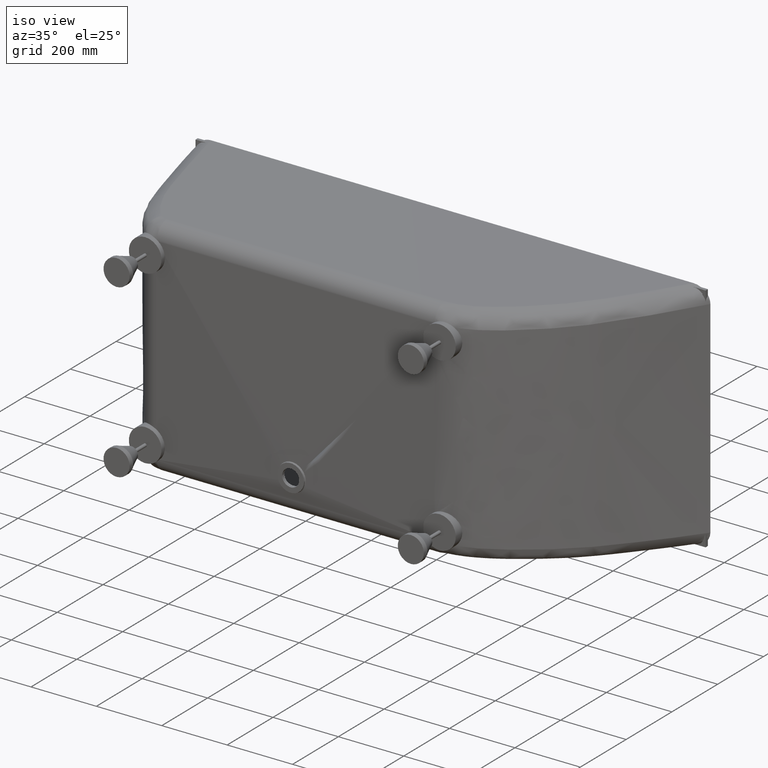
[diagram: clean part render]
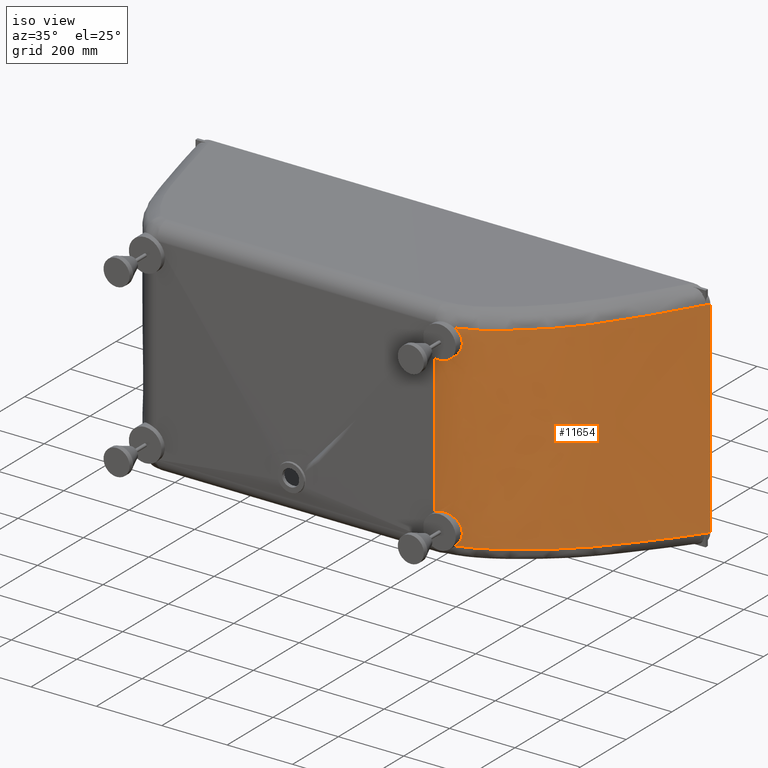
[diagram: same view with one face highlighted and labeled with its STEP entity id]
A machine part, iso view. The second image highlights one B-rep face of the part: STEP entity #11654.
In plain terms, the highlighted face is a freeform B-spline surface patch.
Its self-contained STEP definition (entity closure, byte-faithful):
#9 = CARTESIAN_POINT ( 'NONE',  ( 1267.309593137725000, -357.3975024837407100, 649.2378094680402700 ) ) ;
#53 = CARTESIAN_POINT ( 'NONE',  ( 1269.983699795123800, -355.2120164213674200, 649.3076579596275900 ) ) ;
#94 = CARTESIAN_POINT ( 'NONE',  ( 1283.295496177702300, -344.2252714233738400, 649.6583962051190600 ) ) ;
#188 = CARTESIAN_POINT ( 'NONE',  ( 1293.757025290532100, -335.2461190534969500, 649.9437730083410500 ) ) ;
#233 = CARTESIAN_POINT ( 'NONE',  ( 1314.229546654050200, -316.8328524161873900, 650.5262151124893500 ) ) ;
#376 = CARTESIAN_POINT ( 'NONE',  ( 1324.240568289934300, -307.3987677605180700, 650.8232776860498900 ) ) ;
#422 = CARTESIAN_POINT ( 'NONE',  ( 1338.861870904936900, -292.8485333604758700, 651.2792597529942200 ) ) ;
#467 = CARTESIAN_POINT ( 'NONE',  ( 1343.669750238144600, -287.9319206033292700, 651.4329857938461100 ) ) ;
#518 = CARTESIAN_POINT ( 'NONE',  ( 1353.143931049073700, -277.9557290417711200, 651.7441850910419100 ) ) ;
#531 = CARTESIAN_POINT ( 'NONE',  ( 1095.800427694182900, -457.5483243513754700, 646.1879837396973000 ) ) ;
#565 = CARTESIAN_POINT ( 'NONE',  ( 1357.808626056019900, -272.8945399746083900, 651.9020796299494100 ) ) ;
#611 = CARTESIAN_POINT ( 'NONE',  ( 1371.606892251708600, -257.5133530881425900, 652.3847202786641900 ) ) ;
#654 = CARTESIAN_POINT ( 'NONE',  ( 1380.545864728367600, -246.9969355428487700, 652.7173739683978500 ) ) ;
#711 = CARTESIAN_POINT ( 'NONE',  ( 1062.869857158067600, -463.7492976459578200, 556.7684142275520600 ) ) ;
#738 = CARTESIAN_POINT ( 'NONE',  ( 1065.041729095620700, -463.4875641337829400, 556.7684142275519400 ) ) ;
#739 = CARTESIAN_POINT ( 'NONE',  ( 1393.666486856835300, -230.9318373905376200, 653.2298961310876800 ) ) ;
#757 = CARTESIAN_POINT ( 'NONE',  ( 1060.718462995277400, -463.9747971106363000, 556.9093165557538900 ) ) ;
#758 = CARTESIAN_POINT ( 'NONE',  ( 1397.989606004839100, -225.5314365937515800, 653.4028940617571400 ) ) ;
#773 = CARTESIAN_POINT ( 'NONE',  ( 1056.455482163254800, -464.3568567958956200, 557.4642905254038400 ) ) ;
#783 = CARTESIAN_POINT ( 'NONE',  ( 1406.544078837321200, -214.6691486668219400, 653.7523080740330700 ) ) ;
#787 = CARTESIAN_POINT ( 'NONE',  ( 1054.343897854211500, -464.5134058493065400, 557.8783818421636600 ) ) ;
#805 = CARTESIAN_POINT ( 'NONE',  ( 1410.777130200064900, -209.2051886400693900, 653.9287900949783500 ) ) ;
#819 = CARTESIAN_POINT ( 'NONE',  ( 1051.207227630314900, -464.6990214638698800, 558.7082822657588400 ) ) ;
#831 = CARTESIAN_POINT ( 'NONE',  ( 1423.374271940441300, -192.7375619096949900, 654.4628689024178800 ) ) ;
#852 = CARTESIAN_POINT ( 'NONE',  ( 1050.166805955104600, -464.7526916419151900, 559.0198141798074400 ) ) ;
#853 = CARTESIAN_POINT ( 'NONE',  ( 1431.636366728770300, -181.6581611514112100, 654.8251023073638600 ) ) ;
#868 = CARTESIAN_POINT ( 'NONE',  ( 1048.096599779118200, -464.8440561670190600, 559.7146711521840000 ) ) ;
#882 = CARTESIAN_POINT ( 'NONE',  ( 1443.946831817297800, -164.9777576740013100, 655.3748756164723100 ) ) ;
#888 = CARTESIAN_POINT ( 'NONE',  ( 1047.071049645312500, -464.8815285303695600, 560.0967626611105700 ) ) ;
#900 = CARTESIAN_POINT ( 'NONE',  ( 1448.036533068142500, -159.4074005927162400, 655.5592075713510700 ) ) ;
#916 = CARTESIAN_POINT ( 'NONE',  ( 1044.045429607903500, -464.9702335912373300, 561.3381497862984600 ) ) ;
#949 = CARTESIAN_POINT ( 'NONE',  ( 1042.086965963234200, -464.9981872651615000, 562.2951761525662300 ) ) ;
#950 = CARTESIAN_POINT ( 'NONE',  ( 1456.208581992661500, -148.2612687995967100, 655.9295052845886900 ) ) ;
#983 = CARTESIAN_POINT ( 'NONE',  ( 1040.187886549534400, -464.9999145539902700, 563.3830882440562400 ) ) ;
#997 = CARTESIAN_POINT ( 'NONE',  ( 1460.290916195710200, -142.6854478208637700, 656.1143645788459900 ) ) ;
#1035 = CARTESIAN_POINT ( 'NONE',  ( 1472.511129037617600, -125.9380371757541300, 656.6684600621106300 ) ) ;
#1080 = CARTESIAN_POINT ( 'NONE',  ( 1480.622260560560100, -114.7465316199494200, 657.0372164888639200 ) ) ;
#1172 = CARTESIAN_POINT ( 'NONE',  ( 1496.689005277050200, -92.24783583115703300, 657.7754259195961600 ) ) ;
#1226 = CARTESIAN_POINT ( 'NONE',  ( 1504.644775585312100, -80.94044559387660300, 658.1448844589785900 ) ) ;
#1273 = CARTESIAN_POINT ( 'NONE',  ( 1520.303181811759700, -58.16296286480203300, 658.8858578315096100 ) ) ;
#1423 = CARTESIAN_POINT ( 'NONE',  ( 1528.006992442407600, -46.69136967102464600, 659.2574216721820900 ) ) ;
#1428 = ORIENTED_EDGE ( 'NONE', *, *, #3175, .T. ) ;
#1478 = CARTESIAN_POINT ( 'NONE',  ( 1539.305206256567500, -29.31386054003811400, 659.8176765264269100 ) ) ;
#1520 = CARTESIAN_POINT ( 'NONE',  ( 1543.028327964336300, -23.49298276063200000, 660.0049129404645800 ) ) ;
#1568 = CARTESIAN_POINT ( 'NONE',  ( 1548.539551368239500, -14.71313710322973200, 660.2866579575286300 ) ) ;
#1614 = CARTESIAN_POINT ( 'NONE',  ( 1550.364379802462700, -11.77843184226755800, 660.3807213841103000 ) ) ;
#1642 = LINE ( 'NONE', #3047, #7200 ) ;
#1670 = CARTESIAN_POINT ( 'NONE',  ( 1553.082096264537800, -7.363474668440056300, 660.5220598249299000 ) ) ;
#1766 = CARTESIAN_POINT ( 'NONE',  ( 1553.985540200034600, -5.890279599285811700, 660.5717753942847100 ) ) ;
#1810 = CARTESIAN_POINT ( 'NONE',  ( 1555.794383598505200, -2.945139799642519500, 660.6699028551853400 ) ) ;
#1949 = CARTESIAN_POINT ( 'NONE',  ( 1556.698805297739900, -1.472569899821762900, 660.7189665856359400 ) ) ;
#2035 = ORIENTED_EDGE ( 'NONE', *, *, #10772, .T. ) ;
#2365 = CARTESIAN_POINT ( 'NONE',  ( 1557.603226996974600, 8.906065236621829800E-014, 660.7680303160860800 ) ) ;
#2414 = CARTESIAN_POINT ( 'NONE',  ( 1195.505133367474900, -410.8911458438734600, 647.5489029478402500 ) ) ;
#2669 = CARTESIAN_POINT ( 'NONE',  ( 1095.800427694182900, -457.5483243513754700, 646.1879837396973000 ) ) ;
#2931 = CARTESIAN_POINT ( 'NONE',  ( 1557.603226996974600, 4.672026463672500800E-014, 29.23196968391388900 ) ) ;
#2949 = CARTESIAN_POINT ( 'NONE',  ( 1556.701317016299500, -1.468480346076658200, 29.28089715681695200 ) ) ;
#2965 = CARTESIAN_POINT ( 'NONE',  ( 1555.799407035623300, -2.936960692153207700, 29.32982462971998700 ) ) ;
#2978 = CARTESIAN_POINT ( 'NONE',  ( 1553.995587074271700, -5.873921384306257200, 29.42767957552619200 ) ) ;
#2991 = CARTESIAN_POINT ( 'NONE',  ( 1553.094639102471800, -7.343015621141594500, 29.47728552427100000 ) ) ;
#3006 = CARTESIAN_POINT ( 'NONE',  ( 1550.384578329704300, -11.74578323757758700, 29.61823279432220000 ) ) ;
#3018 = CARTESIAN_POINT ( 'NONE',  ( 1548.564923736037600, -14.67240840182887500, 29.71203630172126600 ) ) ;
#3028 = CARTESIAN_POINT ( 'NONE',  ( 1543.069412932649400, -23.42814000303645000, 29.99300380360178100 ) ) ;
#3040 = CARTESIAN_POINT ( 'NONE',  ( 1539.357020947334400, -29.23310998000716800, 30.17972486336129000 ) ) ;
#3047 = CARTESIAN_POINT ( 'NONE',  ( 1557.603226996974600, 8.906065236621829800E-014, 660.7680303160860800 ) ) ;
#3050 = CARTESIAN_POINT ( 'NONE',  ( 1528.091612423114400, -46.56330276868231300, 30.73843992867504600 ) ) ;
#3078 = CARTESIAN_POINT ( 'NONE',  ( 1520.410492312701100, -58.00389371396797600, 31.10898561876357200 ) ) ;
#3109 = CARTESIAN_POINT ( 'NONE',  ( 1504.798356681897800, -80.71995988027639200, 31.84792510703810100 ) ) ;
#3133 = CARTESIAN_POINT ( 'NONE',  ( 1496.866172379019000, -91.99693032881033600, 32.21636772631658400 ) ) ;
#3169 = DIRECTION ( 'NONE',  ( -0.0000000000000000000, -0.0000000000000000000, -1.000000000000000000 ) ) ;
#3175 = EDGE_CURVE ( 'NONE', #3781, #5935, #8223, .T. ) ;
#3176 = CARTESIAN_POINT ( 'NONE',  ( 1480.846639454985300, -114.4350718417505100, 32.95253862744112200 ) ) ;
#3189 = CARTESIAN_POINT ( 'NONE',  ( 1472.759193661730300, -125.5963598550268800, 33.32026973420256900 ) ) ;
#3213 = CARTESIAN_POINT ( 'NONE',  ( 1460.574112955069300, -142.2981499385913900, 33.87280517536966300 ) ) ;
#3229 = CARTESIAN_POINT ( 'NONE',  ( 1456.503423355706700, -147.8587149991086300, 34.05714076722849600 ) ) ;
#3255 = B_SPLINE_CURVE_WITH_KNOTS ( 'NONE', 3,
 ( #4154, #4181, #4094, #4077, #4035, #4017, #4007, #3995, #3978, #3970, #3959, #3944, #3931, #3923, #3894, #3885, #3855, #3831, #3820, #3793, #3775, #3745, #3729, #3696, #3679, #3651, #3632, #3555, #3537, #3485, #3454, #3436, #3409, #3387, #3355, #3341, #3316, #3274, #3257, #3229, #3213, #3189, #3176, #3133, #3109, #3078, #3050, #3040, #3028, #3018, #3006, #2991, #2978, #2965, #2949, #2931 ),
 .UNSPECIFIED., .F., .F.,
 ( 4, 2, 2, 2, 2, 2, 2, 2, 2, 2, 2, 2, 2, 2, 2, 2, 2, 2, 2, 2, 2, 2, 2, 2, 2, 2, 2, 4 ),
 ( 2.795330740323173300, 2.815908880647884700, 2.826197950810239900, 2.836487020972595600, 2.857065161297307000, 2.877643301622018000, 2.918799582271440300, 2.959955862920862700, 2.980534003245574000, 2.990823073407929700, 3.001112143570285400, 3.042268424219708700, 3.083424704869132300, 3.104002845193843700, 3.124580985518555600, 3.165737266167979200, 3.186315406492691100, 3.206893546817402900, 3.248049827466827000, 3.268627967791538900, 3.289206108116250200, 3.330362388765673900, 3.371518669415097600, 3.412674950064521700, 3.433253090389233500, 3.443542160551589700, 3.448686695632767800, 3.453831230713945800 ),
 .UNSPECIFIED. ) ;
#3257 = CARTESIAN_POINT ( 'NONE',  ( 1448.354443802951200, -158.9741717135670200, 34.42638136507490300 ) ) ;
#3274 = CARTESIAN_POINT ( 'NONE',  ( 1444.276528947666300, -164.5293746324724100, 34.61030376097102100 ) ) ;
#3316 = CARTESIAN_POINT ( 'NONE',  ( 1432.002519240530100, -181.1651351689708100, 35.15872737324670500 ) ) ;
#3341 = CARTESIAN_POINT ( 'NONE',  ( 1423.766148078437700, -192.2158288396857700, 35.52011143268594400 ) ) ;
#3355 = CARTESIAN_POINT ( 'NONE',  ( 1411.210738421993700, -208.6427328740333800, 36.05301408858339600 ) ) ;
#3387 = CARTESIAN_POINT ( 'NONE',  ( 1406.992122489104500, -214.0935085441344900, 36.22912035798020700 ) ) ;
#3409 = CARTESIAN_POINT ( 'NONE',  ( 1398.467744242736200, -224.9303370424743200, 36.57781896170263300 ) ) ;
#3436 = CARTESIAN_POINT ( 'NONE',  ( 1394.160553190964900, -230.3181401316657000, 36.75046698904190400 ) ) ;
#3454 = CARTESIAN_POINT ( 'NONE',  ( 1381.087477296373700, -246.3498329716194900, 37.26208837734957800 ) ) ;
#3485 = CARTESIAN_POINT ( 'NONE',  ( 1372.182608061922600, -256.8464088505771200, 37.59423055535448600 ) ) ;
#3537 = CARTESIAN_POINT ( 'NONE',  ( 1358.439870436722500, -272.2022488090434000, 38.07625201736554700 ) ) ;
#3555 = CARTESIAN_POINT ( 'NONE',  ( 1353.794561363919000, -277.2558721357052600, 38.23401936493272800 ) ) ;
#3632 = CARTESIAN_POINT ( 'NONE',  ( 1344.360046405858200, -287.2178438062699700, 38.54470798572540200 ) ) ;
#3651 = CARTESIAN_POINT ( 'NONE',  ( 1339.572160219553300, -292.1275084293922600, 38.69818229508203400 ) ) ;
#3673 = CARTESIAN_POINT ( 'NONE',  ( 1040.000000000000000, -465.0000000000000600, 664.5572466798792000 ) ) ;
#3679 = CARTESIAN_POINT ( 'NONE',  ( 1325.011208931568900, -306.6572740157742500, 39.15341724621887200 ) ) ;
#3696 = CARTESIAN_POINT ( 'NONE',  ( 1315.040917382845500, -316.0782135996846000, 39.44999256160862400 ) ) ;
#3707 = CARTESIAN_POINT ( 'NONE',  ( 1048.292426831037800, -465.0000000000001100, 664.5572466798792000 ) ) ;
#3712 = CARTESIAN_POINT ( 'NONE',  ( 1048.292426831037800, -465.0000000000001100, 25.44275332012080400 ) ) ;
#3723 = CARTESIAN_POINT ( 'NONE',  ( 1056.431070581183800, -464.5002323143259600, 664.5572466798792000 ) ) ;
#3726 = CARTESIAN_POINT ( 'NONE',  ( 1056.431070581183800, -464.5002323143259600, 25.44275332012080400 ) ) ;
#3729 = CARTESIAN_POINT ( 'NONE',  ( 1294.650270715964600, -334.4656088331972200, 40.03146627671422700 ) ) ;
#3740 = CARTESIAN_POINT ( 'NONE',  ( 1072.389434157357100, -462.6251916047320900, 664.5572466798793100 ) ) ;
#3745 = CARTESIAN_POINT ( 'NONE',  ( 1284.229886545280600, -343.4320352067701900, 40.31636196419560700 ) ) ;
#3760 = CARTESIAN_POINT ( 'NONE',  ( 1072.389434157357100, -462.6251916047320900, 25.44275332012102500 ) ) ;
#3771 = CARTESIAN_POINT ( 'NONE',  ( 1080.209067826215700, -461.2501435144356500, 664.5572466798790900 ) ) ;
#3774 = CARTESIAN_POINT ( 'NONE',  ( 1080.209067826215700, -461.2501435144356500, 25.44275332012069400 ) ) ;
#3775 = CARTESIAN_POINT ( 'NONE',  ( 1270.969417188552100, -354.4027676669693400, 40.66649192091733100 ) ) ;
#3781 = VERTEX_POINT ( 'NONE', #8204 ) ;
#3789 = CARTESIAN_POINT ( 'NONE',  ( 1095.529311824410800, -457.7554616564239600, 664.5572466798792000 ) ) ;
#3793 = CARTESIAN_POINT ( 'NONE',  ( 1268.305570703591900, -356.5850459444036500, 40.73621840538246600 ) ) ;
#3803 = CARTESIAN_POINT ( 'NONE',  ( 1095.529311824410800, -457.7554616564239600, 25.44275332012091400 ) ) ;
#3807 = CARTESIAN_POINT ( 'NONE',  ( 1149.309858811822300, -437.1784031638580400, 664.5572466798792000 ) ) ;
#3817 = CARTESIAN_POINT ( 'NONE',  ( 1103.029996812152800, -455.6360075940918400, 664.5572466798792000 ) ) ;
#3820 = CARTESIAN_POINT ( 'NONE',  ( 1262.955519981596800, -360.9270247187313900, 40.87510519040036200 ) ) ;
#3829 = CARTESIAN_POINT ( 'NONE',  ( 1103.029996812152800, -455.6360075940918400, 25.44275332012080400 ) ) ;
#3831 = CARTESIAN_POINT ( 'NONE',  ( 1260.268770223525700, -363.0871493793953300, 40.94427913014546000 ) ) ;
#3841 = CARTESIAN_POINT ( 'NONE',  ( 1117.724019654184300, -450.7835110666872000, 664.5572466798792000 ) ) ;
#3850 = CARTESIAN_POINT ( 'NONE',  ( 1117.724019654184300, -450.7835110666872000, 25.44275332012091400 ) ) ;
#3855 = CARTESIAN_POINT ( 'NONE',  ( 1252.186623962136500, -369.5275460775195600, 41.15074937750068800 ) ) ;
#3864 = CARTESIAN_POINT ( 'NONE',  ( 1124.917497037466800, -448.0505481763361800, 664.5572466798792000 ) ) ;
#3878 = CARTESIAN_POINT ( 'NONE',  ( 1124.917497037466800, -448.0505481763361800, 25.44275332012091400 ) ) ;
#3881 = CARTESIAN_POINT ( 'NONE',  ( 1135.492093416332200, -443.5862089506269400, 664.5572466798792000 ) ) ;
#3885 = CARTESIAN_POINT ( 'NONE',  ( 1246.768298113707000, -373.7733332200486400, 41.28750973560281800 ) ) ;
#3892 = CARTESIAN_POINT ( 'NONE',  ( 1135.492093416332200, -443.5862089506269400, 25.44275332012091400 ) ) ;
#3894 = CARTESIAN_POINT ( 'NONE',  ( 1230.411063128662400, -386.3491479199722700, 41.68864338580049600 ) ) ;
#3907 = CARTESIAN_POINT ( 'NONE',  ( 1138.981071467977700, -442.0372429475954200, 664.5572466798792000 ) ) ;
#3923 = CARTESIAN_POINT ( 'NONE',  ( 1219.361857131614900, -394.5048799217289000, 41.94471751025754700 ) ) ;
#3930 = CARTESIAN_POINT ( 'NONE',  ( 1138.981071467977700, -442.0372429475954200, 25.44275332012091400 ) ) ;
#3931 = CARTESIAN_POINT ( 'NONE',  ( 1196.781409075778600, -410.0544598598796700, 42.42552086075765800 ) ) ;
#3943 = CARTESIAN_POINT ( 'NONE',  ( 1145.890122046934900, -438.8330101333795000, 664.5572466798792000 ) ) ;
#3944 = CARTESIAN_POINT ( 'NONE',  ( 1185.250584637957000, -417.4489687778695400, 42.65024763039114200 ) ) ;
#3954 = CARTESIAN_POINT ( 'NONE',  ( 1145.890122046934900, -438.8330101333795000, 25.44275332012091400 ) ) ;
#3959 = CARTESIAN_POINT ( 'NONE',  ( 1167.441496662118400, -427.7300264478431000, 42.95778276301413000 ) ) ;
#3970 = CARTESIAN_POINT ( 'NONE',  ( 1161.419548724059500, -431.0217537195640600, 43.05537381375290800 ) ) ;
#3977 = CARTESIAN_POINT ( 'NONE',  ( 1149.309858811822300, -437.1784031638580400, 25.44275332012091400 ) ) ;
#3978 = CARTESIAN_POINT ( 'NONE',  ( 1149.177215101657800, -437.2915018924323900, 43.23976249727826400 ) ) ;
#3995 = CARTESIAN_POINT ( 'NONE',  ( 1142.958054466741700, -440.2714565452041600, 43.32672139773981700 ) ) ;
#4002 = CARTESIAN_POINT ( 'NONE',  ( 1159.483518204265700, -432.0661064961889200, 664.5572466798790900 ) ) ;
#4007 = CARTESIAN_POINT ( 'NONE',  ( 1133.453011243497700, -444.4626878882604600, 43.44717316388531700 ) ) ;
#4017 = CARTESIAN_POINT ( 'NONE',  ( 1130.254986755963700, -445.8128503797823900, 43.48568455919591000 ) ) ;
#4035 = CARTESIAN_POINT ( 'NONE',  ( 1123.793142446498500, -448.4091577798671400, 43.55922697168961800 ) ) ;
#4054 = CARTESIAN_POINT ( 'NONE',  ( 1159.483518204265700, -432.0661064961889200, 25.44275332012069400 ) ) ;
#4069 = CARTESIAN_POINT ( 'NONE',  ( 1166.147355042125100, -428.4608539286942900, 664.5572466798790900 ) ) ;
#4077 = CARTESIAN_POINT ( 'NONE',  ( 1120.545969963632400, -449.6484835046686000, 43.59406478344059400 ) ) ;
#4078 = CARTESIAN_POINT ( 'NONE',  ( 1166.147355042125100, -428.4608539286942900, 25.44275332012069400 ) ) ;
#4091 = CARTESIAN_POINT ( 'NONE',  ( 1185.816419139925100, -417.1524729365016800, 664.5572466798792000 ) ) ;
#4094 = CARTESIAN_POINT ( 'NONE',  ( 1110.770692510116100, -453.1718357989451500, 43.69244675429900600 ) ) ;
#4104 = CARTESIAN_POINT ( 'NONE',  ( 1185.816419139925100, -417.1524729365016800, 25.44275332012091400 ) ) ;
#4114 = CARTESIAN_POINT ( 'NONE',  ( 1198.499246556812300, -408.9574605805697200, 664.5572466798789700 ) ) ;
#4117 = CARTESIAN_POINT ( 'NONE',  ( 1040.187873249125500, -464.9999145660870000, 125.1537325917351200 ) ) ;
#4118 = CARTESIAN_POINT ( 'NONE',  ( 1198.499246556812300, -408.9574605805697200, 25.44275332012058000 ) ) ;
#4131 = CARTESIAN_POINT ( 'NONE',  ( 1223.190729184582600, -391.7603988059399300, 664.5572466798792000 ) ) ;
#4149 = CARTESIAN_POINT ( 'NONE',  ( 1223.190729184582600, -391.7603988059399300, 25.44275332012080400 ) ) ;
#4154 = CARTESIAN_POINT ( 'NONE',  ( 1097.573705731636900, -457.0718283672819100, 43.79907796585547400 ) ) ;
#4161 = CARTESIAN_POINT ( 'NONE',  ( 1235.199825165084800, -382.7579704411062400, 664.5572466798792000 ) ) ;
#4167 = CARTESIAN_POINT ( 'NONE',  ( 1040.187901002524100, -464.9999145408459100, 127.7648662086881800 ) ) ;
#4168 = CARTESIAN_POINT ( 'NONE',  ( 1235.199825165084800, -382.7579704411062400, 25.44275332012080400 ) ) ;
#4178 = CARTESIAN_POINT ( 'NONE',  ( 1249.902686096526400, -371.3043062566794100, 664.5572466798789700 ) ) ;
#4181 = CARTESIAN_POINT ( 'NONE',  ( 1104.201318477794800, -455.2641160285829800, 43.74993894340053700 ) ) ;
#4195 = CARTESIAN_POINT ( 'NONE',  ( 1249.902686096526400, -371.3043062566794100, 25.44275332012058000 ) ) ;
#4207 = CARTESIAN_POINT ( 'NONE',  ( 1252.828940870084400, -369.0034962113152200, 664.5572466798790900 ) ) ;
#4211 = CARTESIAN_POINT ( 'NONE',  ( 1040.187928373965900, -464.9999145159467800, 130.3759998256393300 ) ) ;
#4212 = CARTESIAN_POINT ( 'NONE',  ( 1252.828940870084400, -369.0034962113152200, 25.44275332012069400 ) ) ;
#4222 = CARTESIAN_POINT ( 'NONE',  ( 1258.663367426728000, -364.3728112537809200, 664.5572466798793100 ) ) ;
#4237 = CARTESIAN_POINT ( 'NONE',  ( 1258.663367426728000, -364.3728112537809200, 25.44275332012102500 ) ) ;
#4244 = CARTESIAN_POINT ( 'NONE',  ( 1267.382787726803600, -357.3862523254855400, 664.5572466798792000 ) ) ;
#4250 = CARTESIAN_POINT ( 'NONE',  ( 1267.382787726803600, -357.3862523254855400, 25.44275332012091400 ) ) ;
#4259 = CARTESIAN_POINT ( 'NONE',  ( 1275.997740091890400, -350.2720115845526200, 664.5572466798790900 ) ) ;
#4261 = CARTESIAN_POINT ( 'NONE',  ( 1275.997740091890400, -350.2720115845526200, 25.44275332012069400 ) ) ;
#4279 = CARTESIAN_POINT ( 'NONE',  ( 1304.447170135097600, -326.2469860218416200, 664.5572466798792000 ) ) ;
#4286 = CARTESIAN_POINT ( 'NONE',  ( 1304.447170135097600, -326.2469860218416200, 25.44275332012080400 ) ) ;
#4288 = CARTESIAN_POINT ( 'NONE',  ( 1040.187955353529600, -464.9999144913988400, 132.9871334425944800 ) ) ;
#4311 = CARTESIAN_POINT ( 'NONE',  ( 1326.353482578144600, -306.0319703556556300, 664.5572466798789700 ) ) ;
#4326 = CARTESIAN_POINT ( 'NONE',  ( 1040.188685561867900, -464.9999138270018800, 203.6580889593487300 ) ) ;
#4328 = CARTESIAN_POINT ( 'NONE',  ( 1326.353482578144600, -306.0319703556556300, 25.44275332012058000 ) ) ;
#4337 = CARTESIAN_POINT ( 'NONE',  ( 1349.523898999964300, -281.7791407780346200, 664.5572466798790900 ) ) ;
#4339 = CARTESIAN_POINT ( 'NONE',  ( 1349.523898999964300, -281.7791407780346200, 25.44275332012069400 ) ) ;
#4353 = CARTESIAN_POINT ( 'NONE',  ( 1352.078343277526300, -279.0623636987768900, 664.5572466798790900 ) ) ;
#4364 = CARTESIAN_POINT ( 'NONE',  ( 1352.078343277526300, -279.0623636987768900, 25.44275332012069400 ) ) ;
#4376 = CARTESIAN_POINT ( 'NONE',  ( 1357.139237375818500, -273.5942657453257400, 664.5572466798792000 ) ) ;
#4379 = CARTESIAN_POINT ( 'NONE',  ( 1357.139237375818500, -273.5942657453257400, 25.44275332012080400 ) ) ;
#4395 = CARTESIAN_POINT ( 'NONE',  ( 1126.998609463184300, -447.1267454516117300, 646.4770765724263100 ) ) ;
#4407 = CARTESIAN_POINT ( 'NONE',  ( 1359.646643067870600, -270.8425253591146900, 664.5572466798790900 ) ) ;
#4411 = CARTESIAN_POINT ( 'NONE',  ( 1040.189112755678900, -464.9999134350672400, 274.3290444804908900 ) ) ;
#4412 = CARTESIAN_POINT ( 'NONE',  ( 1359.646643067870600, -270.8425253591146900, 25.44275332012069400 ) ) ;
#4422 = CARTESIAN_POINT ( 'NONE',  ( 1367.104215788974900, -262.5383612043471000, 664.5572466798792000 ) ) ;
#4429 = ORIENTED_EDGE ( 'NONE', *, *, #7868, .T. ) ;
#4441 = CARTESIAN_POINT ( 'NONE',  ( 1367.104215788974900, -262.5383612043471000, 25.44275332012080400 ) ) ;
#4450 = CARTESIAN_POINT ( 'NONE',  ( 1371.989739288436800, -256.9370057716517400, 664.5572466798792000 ) ) ;
#4454 = CARTESIAN_POINT ( 'NONE',  ( 1371.989739288436800, -256.9370057716517400, 25.44275332012091400 ) ) ;
#4468 = CARTESIAN_POINT ( 'NONE',  ( 1386.423595413646800, -239.9698154461693500, 664.5572466798790900 ) ) ;
#4489 = CARTESIAN_POINT ( 'NONE',  ( 1386.423595413646800, -239.9698154461693500, 25.44275332012069400 ) ) ;
#4504 = CARTESIAN_POINT ( 'NONE',  ( 1395.749286556535500, -228.4409885316809400, 664.5572466798790900 ) ) ;
#4512 = CARTESIAN_POINT ( 'NONE',  ( 1395.749286556535500, -228.4409885316809400, 25.44275332012069400 ) ) ;
#4515 = CARTESIAN_POINT ( 'NONE',  ( 1413.997214012775900, -205.1187135713008200, 664.5572466798790900 ) ) ;
#4518 = CARTESIAN_POINT ( 'NONE',  ( 1040.189112345624400, -464.9999134354426900, 345.0000000010176100 ) ) ;
#4534 = CARTESIAN_POINT ( 'NONE',  ( 1413.997214012775900, -205.1187135713008200, 25.44275332012069400 ) ) ;
#4556 = CARTESIAN_POINT ( 'NONE',  ( 1422.919492705787200, -193.3252101464791800, 664.5572466798789700 ) ) ;
#4558 = CARTESIAN_POINT ( 'NONE',  ( 1422.919492705787200, -193.3252101464791800, 25.44275332012058000 ) ) ;
#4560 = CARTESIAN_POINT ( 'NONE',  ( 1040.189111935570100, -464.9999134358180900, 415.6709555222115000 ) ) ;
#4572 = CARTESIAN_POINT ( 'NONE',  ( 1436.141037440972200, -175.5613299517564800, 664.5572466798792000 ) ) ;
#4584 = CARTESIAN_POINT ( 'NONE',  ( 1436.141037440972200, -175.5613299517564800, 25.44275332012080400 ) ) ;
#4594 = CARTESIAN_POINT ( 'NONE',  ( 1440.521214421739400, -169.6277435276229000, 664.5572466798792000 ) ) ;
#4596 = CARTESIAN_POINT ( 'NONE',  ( 1440.521214421739400, -169.6277435276229000, 25.44275332012080400 ) ) ;
#4615 = CARTESIAN_POINT ( 'NONE',  ( 1449.250670090670800, -157.7565825704796200, 664.5572466798789700 ) ) ;
#4626 = CARTESIAN_POINT ( 'NONE',  ( 1449.250670090670800, -157.7565825704796200, 25.44275332012058000 ) ) ;
#4640 = CARTESIAN_POINT ( 'NONE',  ( 1453.599357906856300, -151.8241618177107700, 664.5572466798792000 ) ) ;
#4642 = CARTESIAN_POINT ( 'NONE',  ( 1453.599357906856300, -151.8241618177107700, 25.44275332012080400 ) ) ;
#4657 = CARTESIAN_POINT ( 'NONE',  ( 1475.348000534527700, -122.1076767347843900, 664.5572466798790900 ) ) ;
#4668 = CARTESIAN_POINT ( 'NONE',  ( 1475.348000534527700, -122.1076767347843900, 25.44275332012069400 ) ) ;
#4684 = CARTESIAN_POINT ( 'NONE',  ( 1492.693376811395600, -98.17169924960421700, 664.5572466798792000 ) ) ;
#4687 = CARTESIAN_POINT ( 'NONE',  ( 1040.188683948850000, -464.9999138284769600, 486.3419110440148100 ) ) ;
#4710 = CARTESIAN_POINT ( 'NONE',  ( 1492.693376811395600, -98.17169924960421700, 25.44275332012091400 ) ) ;
#4713 = CARTESIAN_POINT ( 'NONE',  ( 1517.869635703282900, -61.76075553758526100, 664.5572466798792000 ) ) ;
#4724 = CARTESIAN_POINT ( 'NONE',  ( 1040.187953190984400, -464.9999144933662500, 557.0128665614305400 ) ) ;
#4763 = CARTESIAN_POINT ( 'NONE',  ( 1040.187931234347200, -464.9999145133437500, 559.1362737889709300 ) ) ;
#4773 = ORIENTED_EDGE ( 'NONE', *, *, #11107, .T. ) ;
#4853 = CARTESIAN_POINT ( 'NONE',  ( 1517.869635703282900, -61.76075553758526100, 25.44275332012080400 ) ) ;
#4855 = CARTESIAN_POINT ( 'NONE',  ( 1040.187886549534400, -464.9999145539902700, 563.3830882440562400 ) ) ;
#4884 = CARTESIAN_POINT ( 'NONE',  ( 1526.121351156885600, -49.53912966006868900, 664.5572466798792000 ) ) ;
#4887 = CARTESIAN_POINT ( 'NONE',  ( 1040.187909018745100, -464.9999145335534600, 561.2596810165086900 ) ) ;
#4897 = CARTESIAN_POINT ( 'NONE',  ( 1526.121351156885600, -49.53912966006868900, 25.44275332012091400 ) ) ;
#4910 = CARTESIAN_POINT ( 'NONE',  ( 1101.038129703997400, -456.1000506374460300, 641.4768385728880300 ) ) ;
#4912 = CARTESIAN_POINT ( 'NONE',  ( 1538.192252579484600, -31.04571391380226300, 664.5572466798792000 ) ) ;
#4929 = CARTESIAN_POINT ( 'NONE',  ( 1538.192252579484600, -31.04571391380226300, 25.44275332012080400 ) ) ;
#4960 = CARTESIAN_POINT ( 'NONE',  ( 1542.164766291107800, -24.85440539641864900, 664.5572466798790900 ) ) ;
#4975 = CARTESIAN_POINT ( 'NONE',  ( 1542.164766291107800, -24.85440539641864900, 25.44275332012069400 ) ) ;
#4986 = CARTESIAN_POINT ( 'NONE',  ( 1548.034755356147600, -15.52288393897336700, 664.5572466798790900 ) ) ;
#5001 = CARTESIAN_POINT ( 'NONE',  ( 1548.034755356147600, -15.52288393897336700, 25.44275332012069400 ) ) ;
#5014 = CARTESIAN_POINT ( 'NONE',  ( 1550.219353960402900, -12.01520830034214900, 664.5572466798793100 ) ) ;
#5031 = CARTESIAN_POINT ( 'NONE',  ( 1550.219353960402900, -12.01520830034214900, 25.44275332012102500 ) ) ;
#5048 = CARTESIAN_POINT ( 'NONE',  ( 1552.383942487675300, -8.497677404091144000, 664.5572466798792000 ) ) ;
#5073 = CARTESIAN_POINT ( 'NONE',  ( 1552.383942487675300, -8.497677404091144000, 25.44275332012091400 ) ) ;
#5091 = CARTESIAN_POINT ( 'NONE',  ( 1552.864464106018900, -7.715759120021431300, 664.5572466798792000 ) ) ;
#5104 = CARTESIAN_POINT ( 'NONE',  ( 1552.864464106018900, -7.715759120021431300, 25.44275332012091400 ) ) ;
#5107 = CARTESIAN_POINT ( 'NONE',  ( 1553.100300999681200, -7.331616756151222900, 664.5572466798789700 ) ) ;
#5119 = CARTESIAN_POINT ( 'NONE',  ( 1553.100300999681200, -7.331616756151222900, 25.44275332012058000 ) ) ;
#5148 = CARTESIAN_POINT ( 'NONE',  ( 1553.811289315043000, -6.173993057812047000, 664.5572466798793100 ) ) ;
#5163 = CARTESIAN_POINT ( 'NONE',  ( 1553.811289315043000, -6.173993057812047000, 25.44275332012102500 ) ) ;
#5201 = CARTESIAN_POINT ( 'NONE',  ( 1555.233265945767500, -3.858745661133217400, 664.5572466798789700 ) ) ;
#5203 = CARTESIAN_POINT ( 'NONE',  ( 1555.233265945767500, -3.858745661133217400, 25.44275332012058000 ) ) ;
#5219 = CARTESIAN_POINT ( 'NONE',  ( 1556.655242576491900, -1.543498264452704000, 664.5572466798790900 ) ) ;
#5249 = CARTESIAN_POINT ( 'NONE',  ( 1556.655242576491900, -1.543498264452704000, 25.44275332012069400 ) ) ;
#5274 = CARTESIAN_POINT ( 'NONE',  ( 1557.603226996974600, 4.542651440674996400E-013, 664.5572466798792000 ) ) ;
#5292 = CARTESIAN_POINT ( 'NONE',  ( 1557.603226996974600, 4.542651440674996400E-013, 25.44275332012080400 ) ) ;
#5639 = CARTESIAN_POINT ( 'NONE',  ( 1261.939041748969700, -361.7459166843057700, 649.0986776821638400 ) ) ;
#5686 = CARTESIAN_POINT ( 'NONE',  ( 1245.694616308455400, -374.6091575368022900, 648.6857080250357500 ) ) ;
#5780 = CARTESIAN_POINT ( 'NONE',  ( 1099.201358491457300, -456.6223584010921300, 643.2859489137954400 ) ) ;
#5821 = CARTESIAN_POINT ( 'NONE',  ( 1099.667683034580500, -456.4911877319964300, 642.8441454488813600 ) ) ;
#5884 = CARTESIAN_POINT ( 'NONE',  ( 1229.277142696318800, -387.1967890299738400, 648.2846033307510000 ) ) ;
#5935 = VERTEX_POINT ( 'NONE', #8253 ) ;
#5999 = CARTESIAN_POINT ( 'NONE',  ( 1100.585717097690100, -456.2301381281505400, 641.9399934676898700 ) ) ;
#6003 = ORIENTED_EDGE ( 'NONE', *, *, #12565, .T. ) ;
#6011 = CARTESIAN_POINT ( 'NONE',  ( 1097.780741593329600, -457.0173008592557300, 644.5811044355002700 ) ) ;
#6024 = ORIENTED_EDGE ( 'NONE', *, *, #7592, .F. ) ;
#6165 = EDGE_CURVE ( 'NONE', #5935, #11211, #3255, .T. ) ;
#6166 = ORIENTED_EDGE ( 'NONE', *, *, #6165, .T. ) ;
#6203 = CARTESIAN_POINT ( 'NONE',  ( 1065.041729095621800, -463.4875641337828800, 131.7684142275520300 ) ) ;
#6249 = CARTESIAN_POINT ( 'NONE',  ( 1062.892954785400400, -463.7465141378605700, 131.7684142275520900 ) ) ;
#6302 = CARTESIAN_POINT ( 'NONE',  ( 1060.744625953504700, -463.9723505391062300, 131.6304827443565000 ) ) ;
#6319 = CARTESIAN_POINT ( 'NONE',  ( 1057.522930049849500, -464.2612398153074200, 131.2117191732817200 ) ) ;
#6333 = CARTESIAN_POINT ( 'NONE',  ( 1056.449145194253300, -464.3492273311064200, 131.0367083432184100 ) ) ;
#6364 = CARTESIAN_POINT ( 'NONE',  ( 1054.302002559499400, -464.5085481951993000, 130.6136348443039000 ) ) ;
#6376 = CARTESIAN_POINT ( 'NONE',  ( 1053.240908576635800, -464.5789744835872200, 130.3679887104105700 ) ) ;
#6386 = CARTESIAN_POINT ( 'NONE',  ( 1050.094192979918900, -464.7642634520433400, 129.5311945425074200 ) ) ;
#6402 = CARTESIAN_POINT ( 'NONE',  ( 1048.044986385805900, -464.8531526679668100, 128.8405949942248600 ) ) ;
#6427 = CARTESIAN_POINT ( 'NONE',  ( 1044.043030729032800, -464.9701242748821000, 127.1967548508127800 ) ) ;
#6497 = CARTESIAN_POINT ( 'NONE',  ( 1040.187873249125500, -464.9999145660870000, 125.1537325917351200 ) ) ;
#6509 = CARTESIAN_POINT ( 'NONE',  ( 1042.090269151088500, -464.9981843832633800, 126.2435453508241400 ) ) ;
#6723 = B_SPLINE_CURVE_WITH_KNOTS ( 'NONE', 3,
 ( #531, #8835, #6011, #5780, #5821, #5999, #4910, #12834, #12693, #12663, #12636, #12201, #12156, #11982, #11934, #11895, #11858, #11849, #11813, #11781, #11738, #11703, #11363, #11311, #11172, #11126, #11084, #10964, #10860, #10834, #10790, #10707, #10673, #10633, #10445, #10406, #10374, #10229, #10138, #9884, #9857, #9806, #9666, #9628, #9613, #9573, #9522, #9468, #9256, #9219, #9177, #9132, #9020, #8910, #8857, #8828, #8757, #8715, #8667, #8570 ),
 .UNSPECIFIED., .F., .F.,
 ( 4, 2, 2, 2, 2, 2, 2, 2, 2, 2, 2, 2, 2, 2, 2, 2, 2, 2, 2, 2, 2, 2, 2, 2, 2, 2, 2, 2, 2, 4 ),
 ( 0.05967563379143517300, 0.06357734025634023700, 0.06552819348879242200, 0.06747904672124460700, 0.07528245965105417900, 0.08308587258086372300, 0.08503672581331625500, 0.08698757904576878700, 0.09088928551067440600, 0.09869269844048511600, 0.1006435516729378700, 0.1025944049053906000, 0.1064961113702960800, 0.1142995243001067000, 0.1162503775325594800, 0.1182012307650122500, 0.1221029372299177700, 0.1299063501597293400, 0.1318572033921822700, 0.1338080566246352400, 0.1377097630895414100, 0.1455131760193535100, 0.1494148824842595500, 0.1533165889491656100, 0.1611200018789773800, 0.1650217083438832400, 0.1689234148087891400, 0.1767268277386016600, 0.1806285342035082700, 0.1845302406684148900 ),
 .UNSPECIFIED. ) ;
#6820 = CARTESIAN_POINT ( 'NONE',  ( 1251.131745110648100, -370.3574156291279000, 648.8226030893362100 ) ) ;
#6936 = VERTEX_POINT ( 'NONE', #10432 ) ;
#7050 = VERTEX_POINT ( 'NONE', #9604 ) ;
#7200 = VECTOR ( 'NONE', #3169, 1000.000000000000000 ) ;
#7507 = CARTESIAN_POINT ( 'NONE',  ( 1109.054405485831700, -453.7363614632250200, 646.2919671410865000 ) ) ;
#7592 = EDGE_CURVE ( 'NONE', #10143, #11211, #1642, .T. ) ;
#7761 = B_SPLINE_CURVE_WITH_KNOTS ( 'NONE', 3,
 ( #2365, #1949, #1810, #1766, #1670, #1614, #1568, #1520, #1478, #1423, #1273, #1226, #1172, #1080, #1035, #997, #950, #900, #882, #853, #831, #805, #783, #758, #739, #654, #611, #565, #518, #467, #422, #376, #233, #188, #94, #53, #9, #5639, #9960, #6820, #5686, #5884, #10151, #2414, #8758, #8732, #8333, #8593, #10020, #8643, #10124, #9893, #4395, #10779, #10115, #7507, #9774, #9758 ),
 .UNSPECIFIED., .F., .F.,
 ( 4, 2, 2, 2, 2, 2, 2, 2, 2, 2, 2, 2, 2, 2, 2, 2, 2, 2, 2, 2, 2, 2, 2, 2, 2, 2, 2, 2, 4 ),
 ( 2.737303466482781100, 2.742489951971624600, 2.747676437460467600, 2.758049408438154600, 2.778795350393528100, 2.820287234304275100, 2.861779118215022100, 2.903271002125768600, 2.924016944081142100, 2.944762886036515100, 2.986254769947262100, 3.007000711902635200, 3.027746653858008700, 3.069238537768754800, 3.089984479724128300, 3.110730421679501800, 3.152222305590247900, 3.193714189500994400, 3.204087160478681400, 3.214460131456368300, 3.235206073411741800, 3.276697957322489700, 3.318189841233238000, 3.338935783188611900, 3.359681725143985900, 3.364868210632829400, 3.370054696121672900, 3.380427667099359800, 3.401173609054734200 ),
 .UNSPECIFIED. ) ;
#7868 = EDGE_CURVE ( 'NONE', #10280, #12310, #6723, .T. ) ;
#8204 = CARTESIAN_POINT ( 'NONE',  ( 1065.041729095621800, -463.4875641337828800, 131.7684142275520300 ) ) ;
#8223 = B_SPLINE_CURVE_WITH_KNOTS ( 'NONE', 3,
 ( #12047, #12173, #12225, #12034, #12005, #12000, #11971, #11955, #11950, #11940, #11923, #11921, #11903, #11870, #11842, #11840, #11817, #11801, #11789, #11762, #11749, #11729, #11720, #11698, #11696, #11680, #11653, #11650, #11641, #11584, #11571, #11568, #11541, #11504, #11480, #11455, #11441, #11401, #11352, #11336, #11323, #11303, #11285, #11257, #11217, #11196, #11184, #11148, #11120, #11105, #11075, #11052, #10983, #10972 ),
 .UNSPECIFIED., .F., .F.,
 ( 4, 2, 2, 2, 2, 2, 2, 2, 2, 2, 2, 2, 2, 2, 2, 2, 2, 2, 2, 2, 2, 2, 2, 2, 2, 2, 4 ),
 ( 0.02616913978331592000, 0.02999775688981471500, 0.03191206544306409600, 0.03382637399631348300, 0.04148360820931102500, 0.04914084242230856700, 0.05296945952880732800, 0.05679807663530606100, 0.06445531084830352600, 0.06828392795480225900, 0.07211254506130099200, 0.07976977927429845800, 0.08359839638079702400, 0.08551270493404619600, 0.08742701348729534100, 0.09508424770029183500, 0.09891286480679016600, 0.1027414819132885000, 0.1103987161262851600, 0.1142273332327834600, 0.1161416417860326200, 0.1180559503392817600, 0.1257131845522780900, 0.1295418016587762700, 0.1333704187652744500, 0.1410276529782703800, 0.1486848871912663500 ),
 .UNSPECIFIED. ) ;
#8253 = CARTESIAN_POINT ( 'NONE',  ( 1097.573705731636900, -457.0718283672819100, 43.79907796585547400 ) ) ;
#8333 = CARTESIAN_POINT ( 'NONE',  ( 1159.967751333186000, -431.7950445722179900, 646.9217744268667000 ) ) ;
#8570 = CARTESIAN_POINT ( 'NONE',  ( 1065.041729095620700, -463.4875641337829400, 556.7684142275519400 ) ) ;
#8593 = CARTESIAN_POINT ( 'NONE',  ( 1147.658974642661900, -438.0311123706882800, 646.7386262452146200 ) ) ;
#8643 = CARTESIAN_POINT ( 'NONE',  ( 1133.437023166220300, -444.4545314171144800, 646.5531333979689600 ) ) ;
#8667 = CARTESIAN_POINT ( 'NONE',  ( 1066.350698101653300, -463.3298195405807900, 556.7684142275518300 ) ) ;
#8715 = CARTESIAN_POINT ( 'NONE',  ( 1067.652738142649500, -463.1606090147132600, 556.8198840385068700 ) ) ;
#8732 = CARTESIAN_POINT ( 'NONE',  ( 1166.021222920044700, -428.5174725906757100, 647.0188133666270000 ) ) ;
#8757 = CARTESIAN_POINT ( 'NONE',  ( 1070.231772682425600, -462.8018793338775400, 557.0216908796099900 ) ) ;
#8758 = CARTESIAN_POINT ( 'NONE',  ( 1183.920335080085400, -418.2716913268702700, 647.3248881191397000 ) ) ;
#8828 = CARTESIAN_POINT ( 'NONE',  ( 1071.510722439922600, -462.6121245675797100, 557.1720320347878900 ) ) ;
#8835 = CARTESIAN_POINT ( 'NONE',  ( 1096.804840259476800, -457.2824978905885600, 645.4042505902286800 ) ) ;
#8857 = CARTESIAN_POINT ( 'NONE',  ( 1075.316716773811800, -462.0134125067292000, 557.7682036748373100 ) ) ;
#8910 = CARTESIAN_POINT ( 'NONE',  ( 1077.813063234935700, -461.5749883760379400, 558.3582926428605300 ) ) ;
#9020 = CARTESIAN_POINT ( 'NONE',  ( 1081.496590097961400, -460.8654357290521900, 559.5360179165522800 ) ) ;
#9046 = B_SPLINE_CURVE_WITH_KNOTS ( 'NONE', 3,
 ( #738, #711, #757, #773, #787, #819, #852, #868, #888, #916, #949, #983 ),
 .UNSPECIFIED., .F., .F.,
 ( 4, 2, 2, 2, 2, 4 ),
 ( 0.1845302406684148900, 0.1910040431348166700, 0.1974778456012184200, 0.2007147468344192600, 0.2039516480676201200, 0.2104254505340217900 ),
 .UNSPECIFIED. ) ;
#9132 = CARTESIAN_POINT ( 'NONE',  ( 1082.718620730049500, -460.6192903464677800, 559.9796751257519000 ) ) ;
#9177 = CARTESIAN_POINT ( 'NONE',  ( 1085.103892296651100, -460.1191400101776600, 560.9517337248478300 ) ) ;
#9219 = CARTESIAN_POINT ( 'NONE',  ( 1086.270709583789100, -459.8645253504472000, 561.4808825598456700 ) ) ;
#9256 = CARTESIAN_POINT ( 'NONE',  ( 1089.696249471721800, -459.0903915756907700, 563.1946242442769500 ) ) ;
#9403 = B_SPLINE_SURFACE_WITH_KNOTS ( 'NONE', 3, 1, ( 
 ( #3673, #10055 ),
 ( #3707, #3712 ),
 ( #3723, #3726 ),
 ( #3740, #3760 ),
 ( #3771, #3774 ),
 ( #3789, #3803 ),
 ( #3817, #3829 ),
 ( #3841, #3850 ),
 ( #3864, #3878 ),
 ( #3881, #3892 ),
 ( #3907, #3930 ),
 ( #3943, #3954 ),
 ( #3807, #3977 ),
 ( #4002, #4054 ),
 ( #4069, #4078 ),
 ( #4091, #4104 ),
 ( #4114, #4118 ),
 ( #4131, #4149 ),
 ( #4161, #4168 ),
 ( #4178, #4195 ),
 ( #4207, #4212 ),
 ( #4222, #4237 ),
 ( #4244, #4250 ),
 ( #4259, #4261 ),
 ( #4279, #4286 ),
 ( #4311, #4328 ),
 ( #4337, #4339 ),
 ( #4353, #4364 ),
 ( #4376, #4379 ),
 ( #4407, #4412 ),
 ( #4422, #4441 ),
 ( #4450, #4454 ),
 ( #4468, #4489 ),
 ( #4504, #4512 ),
 ( #4515, #4534 ),
 ( #4556, #4558 ),
 ( #4572, #4584 ),
 ( #4594, #4596 ),
 ( #4615, #4626 ),
 ( #4640, #4642 ),
 ( #4657, #4668 ),
 ( #4684, #4710 ),
 ( #4713, #4853 ),
 ( #4884, #4897 ),
 ( #4912, #4929 ),
 ( #4960, #4975 ),
 ( #4986, #5001 ),
 ( #5014, #5031 ),
 ( #5048, #5073 ),
 ( #5091, #5104 ),
 ( #5107, #5119 ),
 ( #5148, #5163 ),
 ( #5201, #5203 ),
 ( #5219, #5249 ),
 ( #5274, #5292 ) ),
 .UNSPECIFIED., .F., .F., .F.,
 ( 4, 2, 2, 2, 2, 2, 2, 2, 2, 2, 2, 1, 2, 2, 2, 2, 2, 2, 2, 2, 2, 2, 2, 2, 1, 2, 2, 1, 4 ),
 ( 2, 2 ),
 ( 0.0000000000000000000, 0.03124999999999938200, 0.06249999999999876500, 0.09374999999999814000, 0.1249999999999975300, 0.1406249999999976400, 0.1562499999999977500, 0.1874999999999986700, 0.2500000000000012200, 0.3125000000000037700, 0.3281250000000040000, 0.3437500000000042700, 0.3750000000000045500, 0.5000000000000041100, 0.5156250000000038900, 0.5312500000000036600, 0.5625000000000033300, 0.6250000000000025500, 0.6875000000000017800, 0.7187500000000011100, 0.7500000000000004400, 0.8749999999999980000, 0.9374999999999967800, 0.9687499999999962300, 0.9843749999999961100, 0.9863281249999963400, 0.9882812499999966700, 0.9921874999999977800, 1.000000000000000000 ),
 ( 0.0000000000000000000, 1.000000000000000000 ),
 .UNSPECIFIED. ) ;
#9468 = CARTESIAN_POINT ( 'NONE',  ( 1091.880504933179500, -458.5605350344804900, 564.5047176235364100 ) ) ;
#9487 = CARTESIAN_POINT ( 'NONE',  ( 1557.603226996974600, 8.906065236621829800E-014, 660.7680303160860800 ) ) ;
#9522 = CARTESIAN_POINT ( 'NONE',  ( 1095.009472418482600, -457.7587211302559400, 566.7238222717228400 ) ) ;
#9573 = CARTESIAN_POINT ( 'NONE',  ( 1096.028691420395300, -457.4900401015638100, 567.5068074781646600 ) ) ;
#9604 = CARTESIAN_POINT ( 'NONE',  ( 1040.187886549534400, -464.9999145539902700, 563.3830882440562400 ) ) ;
#9613 = CARTESIAN_POINT ( 'NONE',  ( 1098.012890942266300, -456.9538429533878300, 569.1576699495822100 ) ) ;
#9628 = CARTESIAN_POINT ( 'NONE',  ( 1098.967443149893800, -456.6891704860216800, 570.0167524880109800 ) ) ;
#9666 = CARTESIAN_POINT ( 'NONE',  ( 1101.721722967693900, -455.9089822423231900, 572.6930138867725200 ) ) ;
#9695 = CARTESIAN_POINT ( 'NONE',  ( 1557.603226996974600, 4.672026463672500800E-014, 29.23196968391388900 ) ) ;
#9736 = EDGE_LOOP ( 'NONE', ( #6003, #1428, #6166, #6024, #4773, #4429, #10086, #2035 ) ) ;
#9758 = CARTESIAN_POINT ( 'NONE',  ( 1095.800427694182900, -457.5483243513754700, 646.1879837396973000 ) ) ;
#9774 = CARTESIAN_POINT ( 'NONE',  ( 1102.456943692337300, -455.7866198983401800, 646.2357662948043100 ) ) ;
#9806 = CARTESIAN_POINT ( 'NONE',  ( 1103.412758079558700, -455.4072022730239800, 574.6085853078699300 ) ) ;
#9857 = CARTESIAN_POINT ( 'NONE',  ( 1105.731726339162800, -454.6972897972263500, 577.6828208920547900 ) ) ;
#9884 = CARTESIAN_POINT ( 'NONE',  ( 1106.468281420148700, -454.4677970784386500, 578.7411991976317700 ) ) ;
#9893 = CARTESIAN_POINT ( 'NONE',  ( 1128.617423323788900, -446.4708640163119600, 646.4956751050065100 ) ) ;
#9960 = CARTESIAN_POINT ( 'NONE',  ( 1259.242573938380200, -363.9088471057788200, 649.0293942510678600 ) ) ;
#10020 = CARTESIAN_POINT ( 'NONE',  ( 1141.405048079379000, -440.9917864813916700, 646.6524089949307400 ) ) ;
#10055 = CARTESIAN_POINT ( 'NONE',  ( 1040.000000000000000, -465.0000000000000600, 25.44275332012080400 ) ) ;
#10086 = ORIENTED_EDGE ( 'NONE', *, *, #11264, .T. ) ;
#10091 = FACE_OUTER_BOUND ( 'NONE', #9736, .T. ) ;
#10115 = CARTESIAN_POINT ( 'NONE',  ( 1118.870603305530900, -450.2701214751732000, 646.3885193861350400 ) ) ;
#10124 = CARTESIAN_POINT ( 'NONE',  ( 1131.835822654921900, -445.1350728787865600, 646.5336946050396100 ) ) ;
#10138 = CARTESIAN_POINT ( 'NONE',  ( 1107.516842958958900, -454.1364517258414300, 580.3811880138315500 ) ) ;
#10143 = VERTEX_POINT ( 'NONE', #9487 ) ;
#10151 = CARTESIAN_POINT ( 'NONE',  ( 1218.183749690264000, -395.3540310483272200, 648.0287617831755800 ) ) ;
#10229 = CARTESIAN_POINT ( 'NONE',  ( 1107.856974399853500, -454.0281502843690200, 580.9367389027690900 ) ) ;
#10280 = VERTEX_POINT ( 'NONE', #2669 ) ;
#10374 = CARTESIAN_POINT ( 'NONE',  ( 1108.512630697252500, -453.8179951532666200, 582.0560409200792300 ) ) ;
#10406 = CARTESIAN_POINT ( 'NONE',  ( 1108.828916284102700, -453.7159022137052500, 582.6209460211123300 ) ) ;
#10432 = CARTESIAN_POINT ( 'NONE',  ( 1040.187873249125500, -464.9999145660870000, 125.1537325917351200 ) ) ;
#10445 = CARTESIAN_POINT ( 'NONE',  ( 1110.353228795686200, -453.2209017956871000, 585.4715666323671700 ) ) ;
#10633 = CARTESIAN_POINT ( 'NONE',  ( 1111.390987348324400, -452.8742454868794900, 587.8350958361498900 ) ) ;
#10673 = CARTESIAN_POINT ( 'NONE',  ( 1112.673431134312100, -452.4401815093315800, 591.5072860789243800 ) ) ;
#10707 = CARTESIAN_POINT ( 'NONE',  ( 1113.055003384810600, -452.3098404837772900, 592.7525906857882800 ) ) ;
#10772 = EDGE_CURVE ( 'NONE', #7050, #6936, #12130, .T. ) ;
#10779 = CARTESIAN_POINT ( 'NONE',  ( 1122.129343563977300, -449.0495992914101700, 646.4227439521741900 ) ) ;
#10790 = CARTESIAN_POINT ( 'NONE',  ( 1113.556269560459000, -452.1376664430117100, 594.6535961163988300 ) ) ;
#10834 = CARTESIAN_POINT ( 'NONE',  ( 1113.711682032292900, -452.0841022467310500, 595.2938456991373600 ) ) ;
#10860 = CARTESIAN_POINT ( 'NONE',  ( 1113.995878784691700, -451.9859093895971100, 596.5742359874376500 ) ) ;
#10964 = CARTESIAN_POINT ( 'NONE',  ( 1114.125013299233800, -451.9411609442388500, 597.2155391173539600 ) ) ;
#10972 = CARTESIAN_POINT ( 'NONE',  ( 1097.573705731636900, -457.0718283672819100, 43.79907796585547400 ) ) ;
#10983 = CARTESIAN_POINT ( 'NONE',  ( 1099.493213200154300, -456.5482737378906700, 45.44370434773616600 ) ) ;
#11052 = CARTESIAN_POINT ( 'NONE',  ( 1101.269770184182100, -456.0387140284789200, 47.21669132732471000 ) ) ;
#11075 = CARTESIAN_POINT ( 'NONE',  ( 1104.546055829654500, -455.0659146283767300, 51.01616738639768300 ) ) ;
#11084 = CARTESIAN_POINT ( 'NONE',  ( 1114.706732405581300, -451.7391863771662800, 600.4275291505005000 ) ) ;
#11105 = CARTESIAN_POINT ( 'NONE',  ( 1106.045817576563200, -454.6025850525555300, 53.04260454125999800 ) ) ;
#11107 = EDGE_CURVE ( 'NONE', #10143, #10280, #7761, .T. ) ;
#11120 = CARTESIAN_POINT ( 'NONE',  ( 1108.078782162118600, -453.9580516692312200, 56.28432277969022800 ) ) ;
#11126 = CARTESIAN_POINT ( 'NONE',  ( 1114.968623647483800, -451.6471113081045100, 603.0145458254226000 ) ) ;
#11148 = CARTESIAN_POINT ( 'NONE',  ( 1108.713560319422600, -453.7537422598226700, 57.38851135933493500 ) ) ;
#11172 = CARTESIAN_POINT ( 'NONE',  ( 1115.058458985768300, -451.6156119312310000, 606.9211001450265700 ) ) ;
#11184 = CARTESIAN_POINT ( 'NONE',  ( 1109.893415084733800, -453.3697129292463000, 59.63394404554955500 ) ) ;
#11196 = CARTESIAN_POINT ( 'NONE',  ( 1110.439456700253500, -453.1896845309216800, 60.77672551598581000 ) ) ;
#11211 = VERTEX_POINT ( 'NONE', #9695 ) ;
#11217 = CARTESIAN_POINT ( 'NONE',  ( 1111.946550286452100, -452.6882322247240000, 64.26537404685615200 ) ) ;
#11257 = CARTESIAN_POINT ( 'NONE',  ( 1112.777422002952100, -452.4052860835106500, 66.67116686850222600 ) ) ;
#11264 = EDGE_CURVE ( 'NONE', #12310, #7050, #9046, .T. ) ;
#11285 = CARTESIAN_POINT ( 'NONE',  ( 1113.588535312389700, -452.1265544805734200, 69.78419295125307500 ) ) ;
#11303 = CARTESIAN_POINT ( 'NONE',  ( 1113.739401752658500, -452.0745378397533600, 70.41277608357866300 ) ) ;
#11311 = CARTESIAN_POINT ( 'NONE',  ( 1115.037675694267600, -451.6229106123125800, 608.2276413884428600 ) ) ;
#11323 = CARTESIAN_POINT ( 'NONE',  ( 1114.015438666295000, -451.9791357729112600, 71.66942364650206800 ) ) ;
#11336 = CARTESIAN_POINT ( 'NONE',  ( 1114.140985129421300, -451.9356214749855700, 72.29881347402653100 ) ) ;
#11352 = CARTESIAN_POINT ( 'NONE',  ( 1114.480691013737900, -451.8176555296883000, 74.19014460485992400 ) ) ;
#11363 = CARTESIAN_POINT ( 'NONE',  ( 1114.928554720386700, -451.6611419855502700, 610.1941454100460800 ) ) ;
#11401 = CARTESIAN_POINT ( 'NONE',  ( 1114.657971122943500, -451.7557738847622200, 75.45524322317561400 ) ) ;
#11441 = CARTESIAN_POINT ( 'NONE',  ( 1115.044064248492300, -451.6208030061482600, 79.26304330946509000 ) ) ;
#11455 = CARTESIAN_POINT ( 'NONE',  ( 1115.108006395049000, -451.5982648614710800, 81.81817865469868400 ) ) ;
#11480 = CARTESIAN_POINT ( 'NONE',  ( 1114.905396826842200, -451.6692577467279600, 85.67651992862178600 ) ) ;
#11504 = CARTESIAN_POINT ( 'NONE',  ( 1114.787011882852100, -451.7107239758806800, 86.97001921578730300 ) ) ;
#11541 = CARTESIAN_POINT ( 'NONE',  ( 1114.454321992688600, -451.8267853742903000, 89.51731848711551700 ) ) ;
#11568 = CARTESIAN_POINT ( 'NONE',  ( 1114.239977756182500, -451.9013937833701700, 90.77689943181793800 ) ) ;
#11571 = CARTESIAN_POINT ( 'NONE',  ( 1113.456758830424600, -452.1724320550315500, 94.51466087295543200 ) ) ;
#11584 = CARTESIAN_POINT ( 'NONE',  ( 1112.748510950633100, -452.4159723401674600, 96.95208236623372500 ) ) ;
#11641 = CARTESIAN_POINT ( 'NONE',  ( 1111.630476545057500, -452.7924641200124800, 99.93138925676701900 ) ) ;
#11650 = CARTESIAN_POINT ( 'NONE',  ( 1111.395168425661500, -452.8713741347813800, 100.5238593417454900 ) ) ;
#11653 = CARTESIAN_POINT ( 'NONE',  ( 1110.900881705650100, -453.0362863802914700, 101.7019583440750700 ) ) ;
#11654 = ADVANCED_FACE ( 'NONE', ( #10091 ), #9403, .F. ) ;
#11680 = CARTESIAN_POINT ( 'NONE',  ( 1110.641332771018100, -453.1224767044851700, 102.2887925822691800 ) ) ;
#11696 = CARTESIAN_POINT ( 'NONE',  ( 1109.830883771139000, -453.3900953605588000, 104.0298327840690400 ) ) ;
#11698 = CARTESIAN_POINT ( 'NONE',  ( 1109.250371532916500, -453.5798604902407200, 105.1605942731282400 ) ) ;
#11703 = CARTESIAN_POINT ( 'NONE',  ( 1114.879025428727300, -451.6784873708555800, 610.8522253942001000 ) ) ;
#11720 = CARTESIAN_POINT ( 'NONE',  ( 1107.392459710986300, -454.1790514389786600, 108.4668829116910300 ) ) ;
#11729 = CARTESIAN_POINT ( 'NONE',  ( 1105.999374379436600, -454.6182790674565100, 110.5569059900258500 ) ) ;
#11738 = CARTESIAN_POINT ( 'NONE',  ( 1114.754191507112000, -451.7221432420038200, 612.1632914666309900 ) ) ;
#11749 = CARTESIAN_POINT ( 'NONE',  ( 1103.681472280867900, -455.3226214136505500, 113.5260391051528500 ) ) ;
#11762 = CARTESIAN_POINT ( 'NONE',  ( 1102.870616951742000, -455.5650136467488100, 114.4879737541559200 ) ) ;
#11781 = CARTESIAN_POINT ( 'NONE',  ( 1114.679067858910700, -451.7483903534927700, 612.8150974129155200 ) ) ;
#11789 = CARTESIAN_POINT ( 'NONE',  ( 1101.170893030922600, -456.0629010105232100, 116.3556639791879000 ) ) ;
#11801 = CARTESIAN_POINT ( 'NONE',  ( 1100.279322897265700, -456.3191162803714200, 117.2634919863285300 ) ) ;
#11813 = CARTESIAN_POINT ( 'NONE',  ( 1114.241194055797500, -451.9010902633969500, 616.0558832241774800 ) ) ;
#11817 = CARTESIAN_POINT ( 'NONE',  ( 1097.529656790879900, -457.0914759277204700, 119.8589485135488200 ) ) ;
#11840 = CARTESIAN_POINT ( 'NONE',  ( 1095.585466643149200, -457.6147882419751300, 121.4336009269378100 ) ) ;
#11842 = CARTESIAN_POINT ( 'NONE',  ( 1092.504521822576900, -458.3981416393916700, 123.5698107407509200 ) ) ;
#11849 = CARTESIAN_POINT ( 'NONE',  ( 1113.692846535108600, -452.0917520995290000, 618.5904544295839300 ) ) ;
#11858 = CARTESIAN_POINT ( 'NONE',  ( 1112.583017187241000, -452.4708341777882800, 622.3086488542200000 ) ) ;
#11870 = CARTESIAN_POINT ( 'NONE',  ( 1091.449971114813700, -458.6590098907821000, 124.2440726521501900 ) ) ;
#11895 = CARTESIAN_POINT ( 'NONE',  ( 1112.164959707453600, -452.6127463921488400, 623.5340397559101600 ) ) ;
#11903 = CARTESIAN_POINT ( 'NONE',  ( 1089.284541677770400, -459.1780141052814200, 125.5161323766641200 ) ) ;
#11921 = CARTESIAN_POINT ( 'NONE',  ( 1088.171946216025200, -459.4365371512170700, 126.1147721312072700 ) ) ;
#11923 = CARTESIAN_POINT ( 'NONE',  ( 1084.757172632867400, -460.2022275305635000, 127.7871810466880200 ) ) ;
#11934 = CARTESIAN_POINT ( 'NONE',  ( 1111.464884648434000, -452.8480129292486800, 625.3509838610187900 ) ) ;
#11940 = CARTESIAN_POINT ( 'NONE',  ( 1082.420154805244700, -460.6901541284313500, 128.7184218210786400 ) ) ;
#11950 = CARTESIAN_POINT ( 'NONE',  ( 1077.625930150984900, -461.6081287720298300, 130.2240720703190100 ) ) ;
#11955 = CARTESIAN_POINT ( 'NONE',  ( 1075.168737015627600, -462.0382209309833000, 130.7984990474417900 ) ) ;
#11971 = CARTESIAN_POINT ( 'NONE',  ( 1072.017605735806900, -462.5319541831179300, 131.2835002042470800 ) ) ;
#11982 = CARTESIAN_POINT ( 'NONE',  ( 1111.219347426443200, -452.9301698186325800, 625.9531043505845700 ) ) ;
#12000 = CARTESIAN_POINT ( 'NONE',  ( 1071.382347907338000, -462.6286483559507000, 131.3688582750162900 ) ) ;
#12005 = CARTESIAN_POINT ( 'NONE',  ( 1070.113980720010200, -462.8159549471454900, 131.5145674464695300 ) ) ;
#12034 = CARTESIAN_POINT ( 'NONE',  ( 1069.479846299948100, -462.9067370766118800, 131.5751158500897300 ) ) ;
#12047 = CARTESIAN_POINT ( 'NONE',  ( 1065.041729095621800, -463.4875641337828800, 131.7684142275520300 ) ) ;
#12130 = B_SPLINE_CURVE_WITH_KNOTS ( 'NONE', 3,
 ( #4855, #4887, #4763, #4724, #4687, #4560, #4518, #4411, #4326, #4288, #4211, #4167, #4117 ),
 .UNSPECIFIED., .F., .F.,
 ( 4, 3, 3, 3, 4 ),
 ( 1.053694111107939900, 1.060064332790887600, 1.272077199356463500, 1.484090065920039300, 1.491923466771306200 ),
 .UNSPECIFIED. ) ;
#12156 = CARTESIAN_POINT ( 'NONE',  ( 1110.703603147163000, -453.1018170903174100, 627.1502205244667000 ) ) ;
#12173 = CARTESIAN_POINT ( 'NONE',  ( 1066.309573245026100, -463.3347755202482300, 131.7684142275520000 ) ) ;
#12201 = CARTESIAN_POINT ( 'NONE',  ( 1110.432823672050100, -453.1914943101662100, 627.7463157735984400 ) ) ;
#12225 = CARTESIAN_POINT ( 'NONE',  ( 1067.577576591112800, -463.1704594034484900, 131.7202622496516800 ) ) ;
#12310 = VERTEX_POINT ( 'NONE', #12523 ) ;
#12523 = CARTESIAN_POINT ( 'NONE',  ( 1065.041729095620700, -463.4875641337829400, 556.7684142275519400 ) ) ;
#12565 = EDGE_CURVE ( 'NONE', #6936, #3781, #12827, .T. ) ;
#12636 = CARTESIAN_POINT ( 'NONE',  ( 1109.028894159296200, -453.6537274124384600, 630.6830631192311800 ) ) ;
#12663 = CARTESIAN_POINT ( 'NONE',  ( 1107.740527572911600, -454.0696971971709100, 632.9095770532765100 ) ) ;
#12693 = CARTESIAN_POINT ( 'NONE',  ( 1104.848768086263800, -454.9722382012499200, 637.1320015005143200 ) ) ;
#12827 = B_SPLINE_CURVE_WITH_KNOTS ( 'NONE', 3,
 ( #6497, #6509, #6427, #6402, #6386, #6376, #6364, #6333, #6319, #6302, #6249, #6203 ),
 .UNSPECIFIED., .F., .F.,
 ( 4, 2, 2, 2, 2, 4 ),
 ( 0.0002137916090516489700, 0.006702628652617714600, 0.01319146569618378000, 0.01643588421796681300, 0.01968030273974984500, 0.02616913978331592000 ),
 .UNSPECIFIED. ) ;
#12834 = CARTESIAN_POINT ( 'NONE',  ( 1103.245332685918600, -455.4589046179895000, 639.1278627616235300 ) ) ;